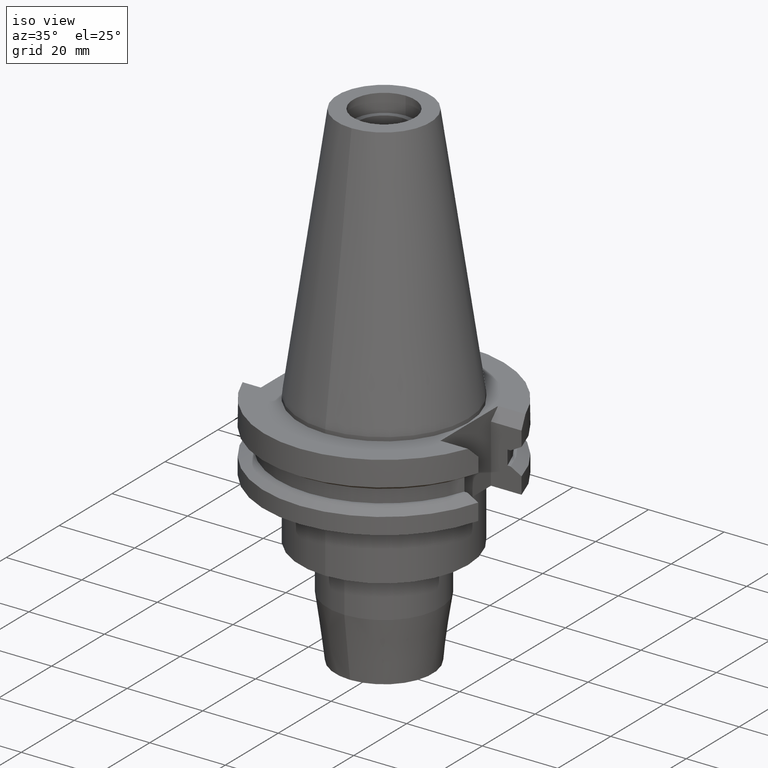
[diagram: clean part render]
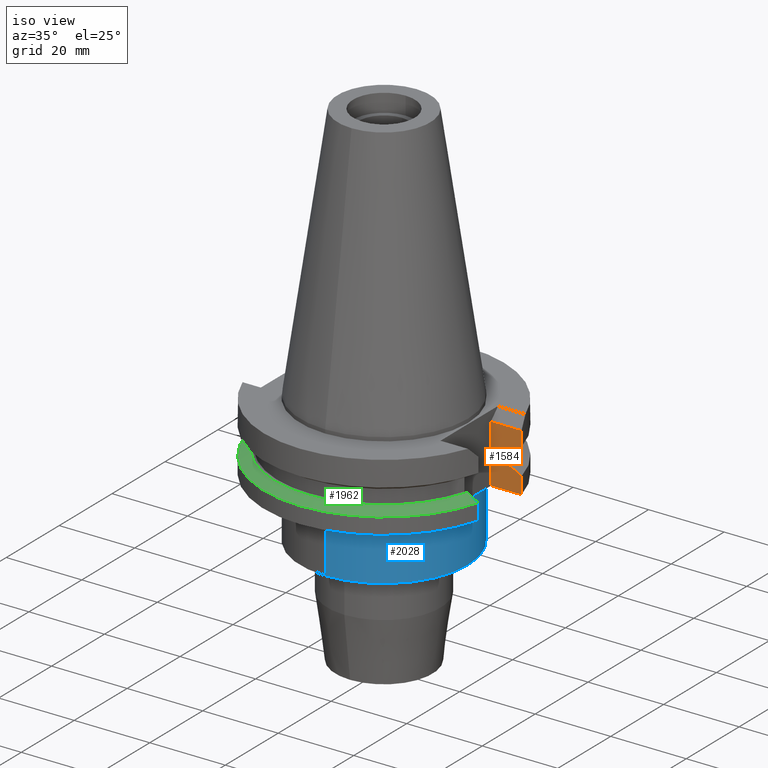
[diagram: same view with three faces highlighted in distinct colors, each labeled with its STEP entity id]
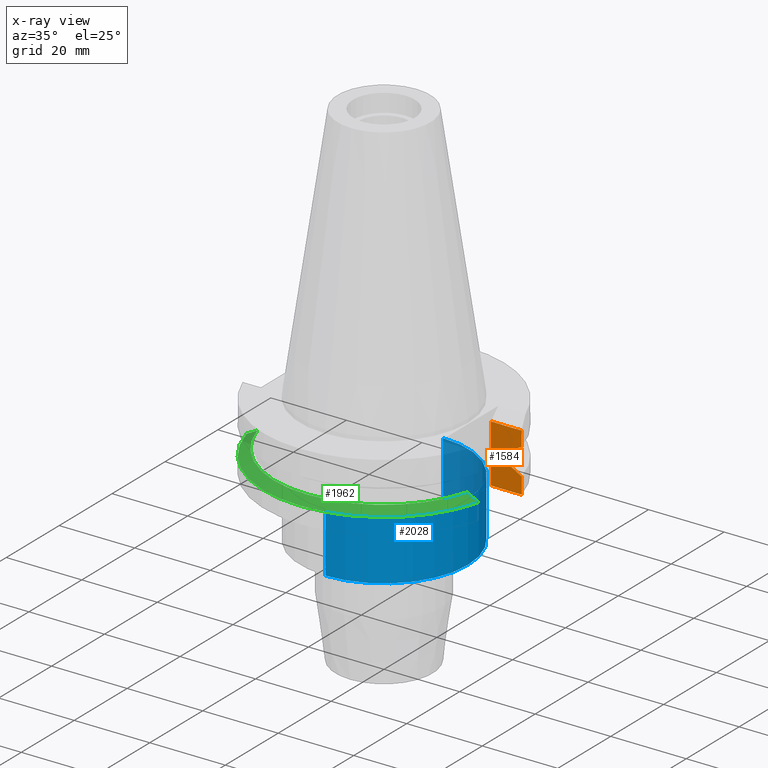
[diagram: x-ray of the same camera — body ghosted, the three highlighted faces saturated]
A machine part, iso view with three faces highlighted in distinct colors.
The next image is the same camera in x-ray (body ghosted, the three faces saturated) — at least one of them is partly hidden behind the body in this view.
Their STEP definitions:

[orange] entity #1584 — the highlighted planar face has unit normal (0, 1, 0).
#159=DIRECTION('',(0.E0,0.E0,-1.E0));
#160=VECTOR('',#159,1.535E1);
#161=CARTESIAN_POINT('',(2.257E1,8.19E0,-3.7E0));
#162=LINE('',#161,#160);
#166=DIRECTION('',(1.E0,0.E0,0.E0));
#167=VECTOR('',#166,8.105501625890E0);
#168=CARTESIAN_POINT('',(2.257E1,8.19E0,-1.905E1));
#169=LINE('',#168,#167);
#235=DIRECTION('',(1.E0,2.301782671290E-7,4.146360664382E-13));
#236=VECTOR('',#235,8.225538991208E-1);
#237=CARTESIAN_POINT('',(2.696361066326E1,8.19E0,-1.30475E1));
#238=LINE('',#237,#236);
#242=CARTESIAN_POINT('',(2.778616456238E1,8.190000189334E0,-1.30475E1));
#243=CARTESIAN_POINT('',(2.810749131977E1,8.190000189334E0,-1.322544911593E1));
#244=CARTESIAN_POINT('',(2.874991652128E1,8.189999992678E0,-1.358173947233E1));
#245=CARTESIAN_POINT('',(2.971304235270E1,8.189999741624E0,-1.411710724809E1));
#246=CARTESIAN_POINT('',(3.035472199195E1,8.190000607757E0,-1.447473778558E1));
#247=CARTESIAN_POINT('',(3.067550146363E1,8.190000607757E0,-1.465367220035E1));
#260=DIRECTION('',(-1.E0,0.E0,0.E0));
#261=VECTOR('',#260,8.105501625890E0);
#262=CARTESIAN_POINT('',(3.067550162589E1,8.19E0,-3.7E0));
#263=LINE('',#262,#261);
#274=DIRECTION('',(4.159171688284E-8,-1.557814748761E-7,1.E0));
#275=VECTOR('',#274,3.901327799924E0);
#276=CARTESIAN_POINT('',(3.067550146363E1,8.190000607755E0,-7.601327799924E0));
#277=LINE('',#276,#275);
#371=DIRECTION('',(-3.690886804741E-8,1.382420666782E-7,1.E0));
#372=VECTOR('',#371,4.396327799648E0);
#373=CARTESIAN_POINT('',(3.067550162589E1,8.19E0,-1.905E1));
#374=LINE('',#373,#372);
#440=DIRECTION('',(0.E0,0.E0,1.E0));
#441=VECTOR('',#440,3.84E0);
#442=CARTESIAN_POINT('',(2.696361066326E1,8.19E0,-1.30475E1));
#443=LINE('',#442,#441);
#454=DIRECTION('',(1.E0,2.302109932518E-7,-1.019313663803E-12));
#455=VECTOR('',#454,8.225538987370E-1);
#456=CARTESIAN_POINT('',(2.696361066326E1,8.19E0,-9.2075E0));
#457=LINE('',#456,#455);
#493=CARTESIAN_POINT('',(2.778616456200E1,8.190000189361E0,-9.207500000001E0));
#494=CARTESIAN_POINT('',(2.809933682813E1,8.190000189361E0,-9.034066799645E0));
#495=CARTESIAN_POINT('',(2.873091124923E1,8.189999992665E0,-8.683837158123E0));
#496=CARTESIAN_POINT('',(2.969401372316E1,8.189999741629E0,-8.148428669085E0));
#497=CARTESIAN_POINT('',(3.034658116890E1,8.190000607755E0,-7.784803257799E0));
#498=CARTESIAN_POINT('',(3.067550146363E1,8.190000607755E0,-7.601327799924E0));
#1244=CARTESIAN_POINT('',(2.257E1,8.19E0,-1.905E1));
#1246=VERTEX_POINT('',#1244);
#1250=CARTESIAN_POINT('',(2.257E1,8.19E0,-3.7E0));
#1251=VERTEX_POINT('',#1250);
#1252=CARTESIAN_POINT('',(3.067550162589E1,8.19E0,-1.905E1));
#1253=VERTEX_POINT('',#1252);
#1332=CARTESIAN_POINT('',(3.067550162589E1,8.19E0,-3.7E0));
#1333=VERTEX_POINT('',#1332);
#1334=CARTESIAN_POINT('',(3.067550146363E1,8.190000607755E0,-7.601327799924E0));
#1335=VERTEX_POINT('',#1334);
#1336=VERTEX_POINT('',#493);
#1337=CARTESIAN_POINT('',(2.696361066326E1,8.19E0,-9.2075E0));
#1338=VERTEX_POINT('',#1337);
#1339=CARTESIAN_POINT('',(2.696361066326E1,8.19E0,-1.30475E1));
#1340=VERTEX_POINT('',#1339);
#1341=CARTESIAN_POINT('',(2.778616456238E1,8.190000189334E0,-1.30475E1));
#1342=VERTEX_POINT('',#1341);
#1343=VERTEX_POINT('',#247);
#1559=CARTESIAN_POINT('',(2.257E1,8.19E0,-1.905E1));
#1560=DIRECTION('',(0.E0,1.E0,0.E0));
#1561=DIRECTION('',(0.E0,0.E0,1.E0));
#1562=AXIS2_PLACEMENT_3D('',#1559,#1560,#1561);
#1563=PLANE('',#1562);
#1564=ORIENTED_EDGE('',*,*,#1532,.F.);
#1565=ORIENTED_EDGE('',*,*,#1521,.F.);
#1567=ORIENTED_EDGE('',*,*,#1566,.F.);
#1569=ORIENTED_EDGE('',*,*,#1568,.F.);
#1571=ORIENTED_EDGE('',*,*,#1570,.F.);
#1573=ORIENTED_EDGE('',*,*,#1572,.F.);
#1575=ORIENTED_EDGE('',*,*,#1574,.F.);
#1577=ORIENTED_EDGE('',*,*,#1576,.T.);
#1579=ORIENTED_EDGE('',*,*,#1578,.T.);
#1581=ORIENTED_EDGE('',*,*,#1580,.F.);
#1582=EDGE_LOOP('',(#1564,#1565,#1567,#1569,#1571,#1573,#1575,#1577,#1579,
#1581));
#1583=FACE_OUTER_BOUND('',#1582,.F.);
#248=B_SPLINE_CURVE_WITH_KNOTS('',3,(#242,#243,#244,#245,#246,#247),
.UNSPECIFIED.,.F.,.F.,(4,1,1,4),(0.E0,3.333333333333E-1,6.666666666667E-1,1.E0),
.UNSPECIFIED.);
#499=B_SPLINE_CURVE_WITH_KNOTS('',3,(#493,#494,#495,#496,#497,#498),
.UNSPECIFIED.,.F.,.F.,(4,1,1,4),(0.E0,3.333333333333E-1,6.666666666667E-1,1.E0),
.UNSPECIFIED.);
#1521=EDGE_CURVE('',#1251,#1246,#162,.T.);
#1532=EDGE_CURVE('',#1246,#1253,#169,.T.);
#1566=EDGE_CURVE('',#1333,#1251,#263,.T.);
#1568=EDGE_CURVE('',#1335,#1333,#277,.T.);
#1570=EDGE_CURVE('',#1336,#1335,#499,.T.);
#1572=EDGE_CURVE('',#1338,#1336,#457,.T.);
#1574=EDGE_CURVE('',#1340,#1338,#443,.T.);
#1576=EDGE_CURVE('',#1340,#1342,#238,.T.);
#1578=EDGE_CURVE('',#1342,#1343,#248,.T.);
#1580=EDGE_CURVE('',#1253,#1343,#374,.T.);
#1584=ADVANCED_FACE('',(#1583),#1563,.F.);

[blue] entity #2028 — the highlighted cylindrical surface (partial cylindrical patch) has radius 22.225 mm, axis along (0, 0, 1).
#227=CARTESIAN_POINT('',(0.E0,0.E0,-1.905E1));
#228=DIRECTION('',(0.E0,0.E0,-1.E0));
#229=DIRECTION('',(0.E0,1.E0,0.E0));
#230=AXIS2_PLACEMENT_3D('',#227,#228,#229);
#816=DIRECTION('',(0.E0,3.519302578373E-14,-1.E0));
#817=VECTOR('',#816,1.595E1);
#818=CARTESIAN_POINT('',(0.E0,-2.2225E1,-1.905E1));
#819=LINE('',#818,#817);
#823=DIRECTION('',(0.E0,-3.519302578373E-14,-1.E0));
#824=VECTOR('',#823,1.595E1);
#825=CARTESIAN_POINT('',(0.E0,2.2225E1,-1.905E1));
#826=LINE('',#825,#824);
#845=CARTESIAN_POINT('',(0.E0,0.E0,-3.5E1));
#846=DIRECTION('',(0.E0,0.E0,1.E0));
#847=DIRECTION('',(0.E0,-1.E0,0.E0));
#848=AXIS2_PLACEMENT_3D('',#845,#846,#847);
#1268=CARTESIAN_POINT('',(0.E0,-2.2225E1,-1.905E1));
#1269=CARTESIAN_POINT('',(0.E0,2.2225E1,-1.905E1));
#1270=VERTEX_POINT('',#1268);
#1271=VERTEX_POINT('',#1269);
#1272=CARTESIAN_POINT('',(0.E0,2.2225E1,-3.5E1));
#1273=VERTEX_POINT('',#1272);
#1274=CARTESIAN_POINT('',(0.E0,-2.2225E1,-3.5E1));
#1275=VERTEX_POINT('',#1274);
#2016=CARTESIAN_POINT('',(0.E0,0.E0,-7.00875E1));
#2017=DIRECTION('',(0.E0,0.E0,1.E0));
#2018=DIRECTION('',(0.E0,1.E0,0.E0));
#2019=AXIS2_PLACEMENT_3D('',#2016,#2017,#2018);
#2020=CYLINDRICAL_SURFACE('',#2019,2.2225E1);
#2021=ORIENTED_EDGE('',*,*,#2006,.T.);
#2023=ORIENTED_EDGE('',*,*,#2022,.F.);
#2024=ORIENTED_EDGE('',*,*,#2009,.F.);
#2025=ORIENTED_EDGE('',*,*,#1554,.F.);
#2026=EDGE_LOOP('',(#2021,#2023,#2024,#2025));
#2027=FACE_OUTER_BOUND('',#2026,.F.);
#231=CIRCLE('',#230,2.2225E1);
#849=CIRCLE('',#848,2.2225E1);
#1554=EDGE_CURVE('',#1271,#1270,#231,.T.);
#2006=EDGE_CURVE('',#1271,#1273,#826,.T.);
#2009=EDGE_CURVE('',#1270,#1275,#819,.T.);
#2022=EDGE_CURVE('',#1275,#1273,#849,.T.);
#2028=ADVANCED_FACE('',(#2027),#2020,.T.);

[green] entity #1962 — the highlighted conical surface has half-angle 60 deg.
#580=CARTESIAN_POINT('',(3.067550165973E1,-8.189999873269E0,-1.465366563656E1));
#581=CARTESIAN_POINT('',(3.035472638832E1,-8.189999873269E0,-1.447473356132E1));
#582=CARTESIAN_POINT('',(2.971302854440E1,-8.189999973531E0,-1.411712893224E1));
#583=CARTESIAN_POINT('',(2.874990656832E1,-8.190000282738E0,-1.358176285205E1));
#584=CARTESIAN_POINT('',(2.810748973799E1,-8.189999357924E0,-1.322544131159E1));
#585=CARTESIAN_POINT('',(2.778617708158E1,-8.189999357924E0,-1.30475E1));
#632=CARTESIAN_POINT('',(-2.778616455995E1,-8.190000189495E0,-1.30475E1));
#633=CARTESIAN_POINT('',(-2.810749131987E1,-8.190000189495E0,
-1.322544911733E1));
#634=CARTESIAN_POINT('',(-2.874991652465E1,-8.189999992593E0,
-1.358173946419E1));
#635=CARTESIAN_POINT('',(-2.971304235803E1,-8.189999741681E0,
-1.411710723746E1));
#636=CARTESIAN_POINT('',(-3.035472199219E1,-8.190000607682E0,
-1.447473778503E1));
#637=CARTESIAN_POINT('',(-3.067550146365E1,-8.190000607682E0,
-1.465367219967E1));
#738=CARTESIAN_POINT('',(0.E0,0.E0,-1.30475E1));
#739=DIRECTION('',(0.E0,0.E0,-1.E0));
#740=DIRECTION('',(9.592008904640E-1,-2.827253998727E-1,0.E0));
#741=AXIS2_PLACEMENT_3D('',#738,#739,#740);
#746=CARTESIAN_POINT('',(0.E0,0.E0,-1.30475E1));
#747=DIRECTION('',(0.E0,0.E0,-1.E0));
#748=DIRECTION('',(0.E0,-1.E0,0.E0));
#749=AXIS2_PLACEMENT_3D('',#746,#747,#748);
#770=CARTESIAN_POINT('',(0.E0,0.E0,-1.465366676908E1));
#771=DIRECTION('',(0.E0,0.E0,-1.E0));
#772=DIRECTION('',(9.661575315241E-1,-2.579527559055E-1,0.E0));
#773=AXIS2_PLACEMENT_3D('',#770,#771,#772);
#778=CARTESIAN_POINT('',(0.E0,0.E0,-1.465366676908E1));
#779=DIRECTION('',(0.E0,0.E0,-1.E0));
#780=DIRECTION('',(0.E0,-1.E0,0.E0));
#781=AXIS2_PLACEMENT_3D('',#778,#779,#780);
#1358=CARTESIAN_POINT('',(3.067550165973E1,-8.189999873269E0,
-1.465366563656E1));
#1359=VERTEX_POINT('',#1358);
#1360=VERTEX_POINT('',#585);
#1367=CARTESIAN_POINT('',(-3.067550146365E1,-8.190000607682E0,
-1.465367219967E1));
#1368=VERTEX_POINT('',#1367);
#1369=CARTESIAN_POINT('',(0.E0,-3.175E1,-1.465366676908E1));
#1370=VERTEX_POINT('',#1369);
#1382=CARTESIAN_POINT('',(-2.778616455995E1,-8.190000189495E0,-1.30475E1));
#1383=VERTEX_POINT('',#1382);
#1397=CARTESIAN_POINT('',(3.537899182731E-14,-2.896803755053E1,-1.30475E1));
#1398=VERTEX_POINT('',#1397);
#1949=CARTESIAN_POINT('',(0.E0,0.E0,-1.385058338454E1));
#1950=DIRECTION('',(0.E0,0.E0,-1.E0));
#1951=DIRECTION('',(0.E0,-1.E0,0.E0));
#1952=AXIS2_PLACEMENT_3D('',#1949,#1950,#1951);
#1953=CONICAL_SURFACE('',#1952,3.035901877527E1,6.E1);
#1954=ORIENTED_EDGE('',*,*,#1829,.F.);
#1955=ORIENTED_EDGE('',*,*,#1857,.T.);
#1956=ORIENTED_EDGE('',*,*,#1855,.T.);
#1957=ORIENTED_EDGE('',*,*,#1879,.F.);
#1958=ORIENTED_EDGE('',*,*,#1941,.F.);
#1959=ORIENTED_EDGE('',*,*,#1939,.F.);
#1960=EDGE_LOOP('',(#1954,#1955,#1956,#1957,#1958,#1959));
#1961=FACE_OUTER_BOUND('',#1960,.F.);
#586=B_SPLINE_CURVE_WITH_KNOTS('',3,(#580,#581,#582,#583,#584,#585),
.UNSPECIFIED.,.F.,.F.,(4,1,1,4),(0.E0,3.333333333333E-1,6.666666666667E-1,1.E0),
.UNSPECIFIED.);
#638=B_SPLINE_CURVE_WITH_KNOTS('',3,(#632,#633,#634,#635,#636,#637),
.UNSPECIFIED.,.F.,.F.,(4,1,1,4),(0.E0,3.333333333333E-1,6.666666666667E-1,1.E0),
.UNSPECIFIED.);
#742=CIRCLE('',#741,2.896803755053E1);
#750=CIRCLE('',#749,2.896803755053E1);
#774=CIRCLE('',#773,3.175E1);
#782=CIRCLE('',#781,3.175E1);
#1829=EDGE_CURVE('',#1359,#1360,#586,.T.);
#1855=EDGE_CURVE('',#1370,#1368,#782,.T.);
#1857=EDGE_CURVE('',#1359,#1370,#774,.T.);
#1879=EDGE_CURVE('',#1383,#1368,#638,.T.);
#1939=EDGE_CURVE('',#1360,#1398,#742,.T.);
#1941=EDGE_CURVE('',#1398,#1383,#750,.T.);
#1962=ADVANCED_FACE('',(#1961),#1953,.T.);